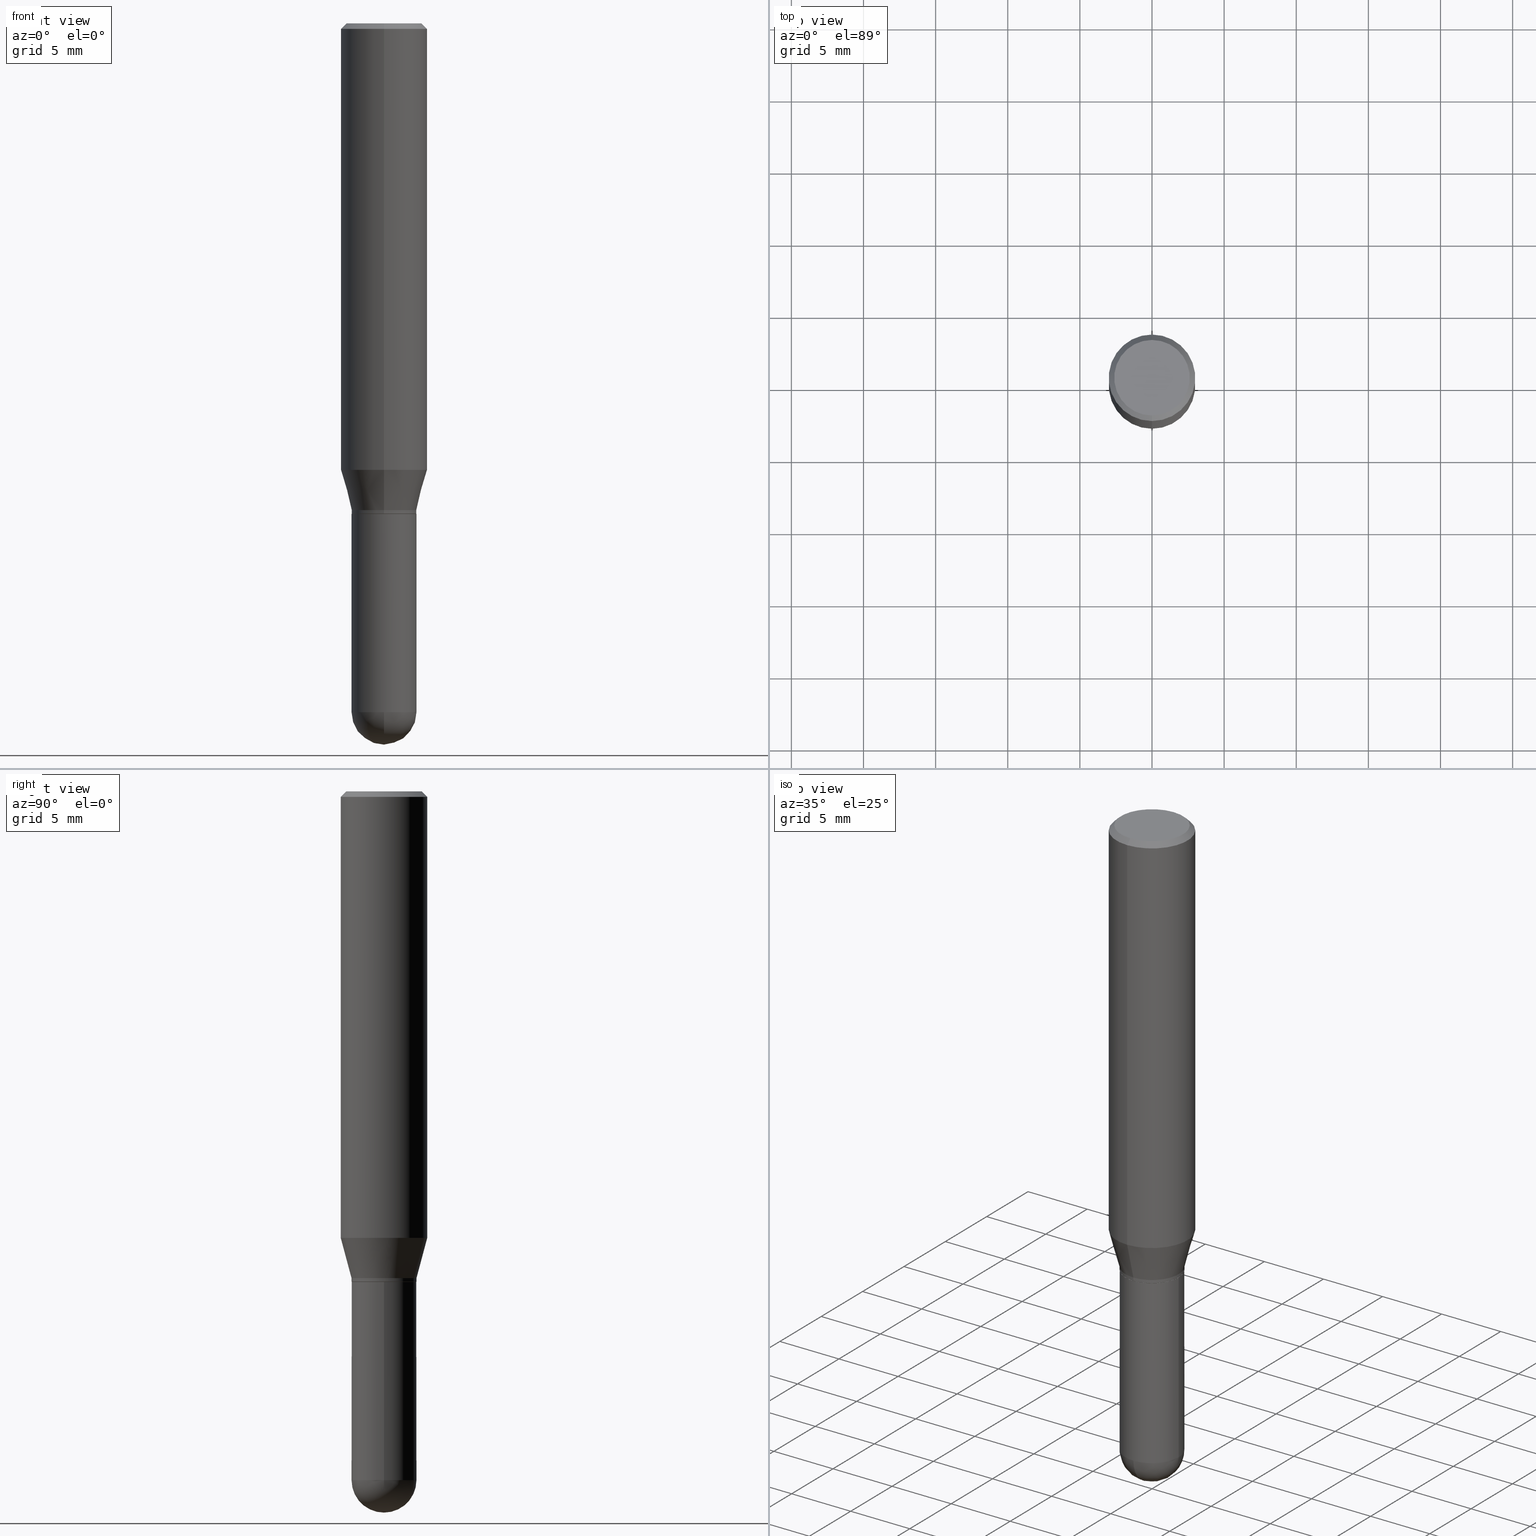
[diagram: canonical four-view strip — front | top / right | iso, engineering-drawing reading convention]
A machine part, canonical four-view strip (front | top / right | iso — engineering-drawing reading convention). The complete STEP part file that produces these views, byte-faithful:
ISO-10303-21;
HEADER;
FILE_DESCRIPTION (( 'STEP AP203' ),
    '1' );
FILE_NAME ('40134.STEP',
    '2024-03-08T12:56:34',
    ( '' ),
    ( '' ),
    'SwSTEP 2.0',
    'SolidWorks 2023',
    '' );
FILE_SCHEMA (( 'CONFIG_CONTROL_DESIGN' ));
ENDSEC;

DATA;
#1 = CLOSED_SHELL ( 'NONE', ( #63, #347, #113, #333, #170, #132, #301, #21, #458, #171, #401, #387 ) ) ;
#2 = EDGE_CURVE ( 'NONE', #439, #492, #303, .T. ) ;
#3 = CYLINDRICAL_SURFACE ( 'NONE', #398, 0.1180999999999999966 ) ;
#4 = ORIENTED_EDGE ( 'NONE', *, *, #443, .T. ) ;
#5 = FACE_OUTER_BOUND ( 'NONE', #475, .T. ) ;
#6 = ORIENTED_EDGE ( 'NONE', *, *, #57, .F. ) ;
#7 = EDGE_CURVE ( 'NONE', #330, #364, #332, .T. ) ;
#8 = APPLICATION_PROTOCOL_DEFINITION ( 'international standard', 'config_control_design', 1994, #345 ) ;
#9 = CARTESIAN_POINT ( 'NONE',  ( 0.000000000000000000, 0.000000000000000000, 0.000000000000000000 ) ) ;
#10 = VECTOR ( 'NONE', #491, 39.37007874015748854 ) ;
#11 = AXIS2_PLACEMENT_3D ( 'NONE', #471, #323, #241 ) ;
#12 = DIRECTION ( 'NONE',  ( 2.438088387897960049E-29, -3.491481338843145188E-15, -1.000000000000000000 ) ) ;
#13 = CARTESIAN_POINT ( 'NONE',  ( 8.391509709326781971E-16, 0.1180999999999999966, -4.123265039032293037E-16 ) ) ;
#14 = MANIFOLD_SOLID_BREP ( 'Body-Move/Copy2[2]', #1 ) ;
#15 = FACE_OUTER_BOUND ( 'NONE', #53, .T. ) ;
#16 = ORIENTED_EDGE ( 'NONE', *, *, #2, .T. ) ;
#17 = CARTESIAN_POINT ( 'NONE',  ( 8.391509709327078780E-16, 0.1180999999999957362, -1.218504501176719046 ) ) ;
#18 = VERTEX_POINT ( 'NONE', #259 ) ;
#19 = PRODUCT ( '40134', '40134', '', ( #425 ) ) ;
#20 = ORGANIZATION ( 'UNSPECIFIED', 'UNSPECIFIED', '' ) ;
#21 = ADVANCED_FACE ( 'NONE', ( #413 ), #256, .T. ) ;
#22 = DIRECTION ( 'NONE',  ( -2.445571937709606698E-29, 3.491333648630222721E-15, 1.000000000000000000 ) ) ;
#23 = DESIGN_CONTEXT ( 'detailed design', #269, 'design' ) ;
#24 = DIRECTION ( 'NONE',  ( -2.445468806185136597E-29, 3.491481338843145583E-15, 1.000000000000000000 ) ) ;
#25 = PERSON_AND_ORGANIZATION_ROLE ( 'creator' ) ;
#26 = DIRECTION ( 'NONE',  ( -6.982962677686265922E-15, -1.000000000000000000, 3.491333648630222721E-15 ) ) ;
#27 = EDGE_CURVE ( 'NONE', #434, #492, #298, .T. ) ;
#28 = PERSON_AND_ORGANIZATION ( #211, #20 ) ;
#29 = EDGE_CURVE ( 'NONE', #330, #218, #318, .T. ) ;
#30 = CIRCLE ( 'NONE', #427, 0.08809999999999999776 ) ;
#31 = FACE_OUTER_BOUND ( 'NONE', #470, .T. ) ;
#32 = LOCAL_TIME ( 7, 56, 34.00000000000000000, #65 ) ;
#33 = CARTESIAN_POINT ( 'NONE',  ( 3.249186876440983461E-29, -4.638585885570114762E-15, -1.328600000000000225 ) ) ;
#34 = CALENDAR_DATE ( 2024, 8, 3 ) ;
#35 = DIRECTION ( 'NONE',  ( -2.445571937709606698E-29, 3.491333648630222721E-15, 1.000000000000000000 ) ) ;
#36 = CARTESIAN_POINT ( 'NONE',  ( -8.246878922347182859E-16, -0.1181000000000042710, -1.218504501176718158 ) ) ;
#37 = CIRCLE ( 'NONE', #407, 0.08859999999999998432 ) ;
#38 = AXIS2_PLACEMENT_3D ( 'NONE', #116, #359, #122 ) ;
#39 = CARTESIAN_POINT ( 'NONE',  ( 3.273504543959423913E-29, -4.673696920175434737E-15, -1.338600000000000012 ) ) ;
#40 = ORIENTED_EDGE ( 'NONE', *, *, #94, .F. ) ;
#41 = CARTESIAN_POINT ( 'NONE',  ( 3.273642595818079531E-29, -4.673499222056415285E-15, -1.338600000000000012 ) ) ;
#42 = ORIENTED_EDGE ( 'NONE', *, *, #231, .T. ) ;
#43 = DIRECTION ( 'NONE',  ( -2.445571937709606698E-29, 3.491333648630222721E-15, 1.000000000000000000 ) ) ;
#44 = CC_DESIGN_DATE_AND_TIME_ASSIGNMENT ( #299, #422, ( #340 ) ) ;
#45 = ORIENTED_EDGE ( 'NONE', *, *, #346, .F. ) ;
#46 = CIRCLE ( 'NONE', #464, 0.1180999999999999966 ) ;
#47 = CC_DESIGN_APPROVAL ( #138, ( #386 ) ) ;
#48 = LINE ( 'NONE', #315, #457 ) ;
#49 = EDGE_LOOP ( 'NONE', ( #184, #142, #252, #251 ) ) ;
#50 = PLANE ( 'NONE',  #371 ) ;
#51 = VERTEX_POINT ( 'NONE', #215 ) ;
#52 = CARTESIAN_POINT ( 'NONE',  ( 6.186904932430358878E-16, 0.08859999999999532139, -1.338600000000000234 ) ) ;
#53 = EDGE_LOOP ( 'NONE', ( #482, #83, #93, #507, #317 ) ) ;
#54 = AXIS2_PLACEMENT_3D ( 'NONE', #461, #306, #156 ) ;
#55 = DIRECTION ( 'NONE',  ( -1.000000000000000000, 6.982962677686265922E-15, -4.876176775795935793E-29 ) ) ;
#56 = ORIENTED_EDGE ( 'NONE', *, *, #314, .F. ) ;
#57 = EDGE_CURVE ( 'NONE', #445, #452, #66, .T. ) ;
#58 = CARTESIAN_POINT ( 'NONE',  ( 3.249186876440983461E-29, -4.638585885570114762E-15, -1.328600000000000225 ) ) ;
#59 = EDGE_LOOP ( 'NONE', ( #16, #242, #135, #277 ) ) ;
#60 = DIRECTION ( 'NONE',  ( 2.445571937709606137E-29, -3.491333648630222721E-15, -1.000000000000000000 ) ) ;
#61 = ORIENTED_EDGE ( 'NONE', *, *, #94, .T. ) ;
#62 = VECTOR ( 'NONE', #351, 39.37007874015748143 ) ;
#63 = ADVANCED_FACE ( 'NONE', ( #377 ), #367, .T. ) ;
#64 = VECTOR ( 'NONE', #158, 39.37007874015748143 ) ;
#65 = COORDINATED_UNIVERSAL_TIME_OFFSET ( 5, 0, .BEHIND. ) ;
#66 = LINE ( 'NONE', #13, #79 ) ;
#67 = PERSON_AND_ORGANIZATION ( #211, #20 ) ;
#68 = CARTESIAN_POINT ( 'NONE',  ( 4.589660035425309027E-29, -6.574486139531674551E-15, -1.879900000000000126 ) ) ;
#69 = COORDINATED_UNIVERSAL_TIME_OFFSET ( 5, 0, .BEHIND. ) ;
#70 = DIRECTION ( 'NONE',  ( -1.000000000000000000, 6.982962677686265133E-15, -4.883557194083112340E-29 ) ) ;
#71 = APPROVAL_ROLE ( '' ) ;
#72 = CIRCLE ( 'NONE', #355, 0.08859999999999998432 ) ;
#73 = SPHERICAL_SURFACE ( 'NONE', #110, 0.08859999999999998432 ) ;
#74 = CIRCLE ( 'NONE', #216, 0.08859999999999991493 ) ;
#75 = PERSON_AND_ORGANIZATION_ROLE ( 'creator' ) ;
#76 = DIRECTION ( 'NONE',  ( -2.445468806185136597E-29, 3.491481338843145583E-15, 1.000000000000000000 ) ) ;
#77 = CARTESIAN_POINT ( 'NONE',  ( -8.246878922347475723E-16, -0.1181000000000000522, -0.01499999999999965944 ) ) ;
#78 = DIRECTION ( 'NONE',  ( -6.982962677686265922E-15, -1.000000000000000000, 3.469747663417777397E-15 ) ) ;
#79 = VECTOR ( 'NONE', #415, 39.37007874015748143 ) ;
#80 = VERTEX_POINT ( 'NONE', #348 ) ;
#81 = CONICAL_SURFACE ( 'NONE', #145, 0.08809999999999999776, 0.7853981633974653764 ) ;
#82 = CARTESIAN_POINT ( 'NONE',  ( 3.668357906564427545E-31, -5.237000472945358290E-17, -0.01500000000000007057 ) ) ;
#83 = ORIENTED_EDGE ( 'NONE', *, *, #115, .T. ) ;
#84 = DIRECTION ( 'NONE',  ( -2.445571937709606698E-29, 3.491333648630222721E-15, 1.000000000000000000 ) ) ;
#85 = VERTEX_POINT ( 'NONE', #149 ) ;
#86 = CARTESIAN_POINT ( 'NONE',  ( 0.000000000000000000, 0.000000000000000000, 0.000000000000000000 ) ) ;
#87 = EDGE_LOOP ( 'NONE', ( #201, #393, #509, #253 ) ) ;
#88 = PRODUCT_DEFINITION_SHAPE ( 'NONE', 'NONE',  #188 ) ;
#89 = CIRCLE ( 'NONE', #376, 0.08859999999999998432 ) ;
#90 = LOCAL_TIME ( 7, 56, 34.00000000000000000, #69 ) ;
#91 = VERTEX_POINT ( 'NONE', #268 ) ;
#92 = CARTESIAN_POINT ( 'NONE',  ( 0.000000000000000000, 0.000000000000000000, 0.000000000000000000 ) ) ;
#93 = ORIENTED_EDGE ( 'NONE', *, *, #430, .T. ) ;
#94 = EDGE_CURVE ( 'NONE', #294, #85, #295, .T. ) ;
#95 = CYLINDRICAL_SURFACE ( 'NONE', #435, 0.08859999999999998432 ) ;
#96 = CARTESIAN_POINT ( 'NONE',  ( 3.272419809849225596E-29, -4.671753555232101403E-15, -1.338100000000000067 ) ) ;
#97 = DIRECTION ( 'NONE',  ( -6.982962677686264344E-15, -1.000000000000000000, 3.083349879982241481E-15 ) ) ;
#98 = ORIENTED_EDGE ( 'NONE', *, *, #150, .T. ) ;
#99 = ORIENTED_EDGE ( 'NONE', *, *, #153, .F. ) ;
#100 = PERSON_AND_ORGANIZATION_ROLE ( 'design_owner' ) ;
#101 = ORIENTED_EDGE ( 'NONE', *, *, #236, .F. ) ;
#102 =( GEOMETRIC_REPRESENTATION_CONTEXT ( 3 ) GLOBAL_UNCERTAINTY_ASSIGNED_CONTEXT ( ( #416 ) ) GLOBAL_UNIT_ASSIGNED_CONTEXT ( ( #450, #221, #370 ) ) REPRESENTATION_CONTEXT ( 'NONE', 'WORKASPACE' ) );
#103 = APPROVAL_DATE_TIME ( #309, #462 ) ;
#104 = CARTESIAN_POINT ( 'NONE',  ( 4.589660035425309027E-29, -6.574486139531674551E-15, -1.879900000000000126 ) ) ;
#105 = CC_DESIGN_PERSON_AND_ORGANIZATION_ASSIGNMENT ( #352, #496, ( #340 ) ) ;
#106 = APPROVAL_ROLE ( '' ) ;
#107 = DIRECTION ( 'NONE',  ( -6.982962677686265133E-15, -1.000000000000000000, 3.100849027995758518E-15 ) ) ;
#108 = PERSON_AND_ORGANIZATION ( #211, #20 ) ;
#109 = FACE_OUTER_BOUND ( 'NONE', #49, .T. ) ;
#110 = AXIS2_PLACEMENT_3D ( 'NONE', #104, #70, #273 ) ;
#111 = CARTESIAN_POINT ( 'NONE',  ( 3.273642595818079531E-29, -4.673499222056415285E-15, -1.338600000000000012 ) ) ;
#112 = LOCAL_TIME ( 7, 56, 34.00000000000000000, #305 ) ;
#113 = ADVANCED_FACE ( 'NONE', ( #456 ), #479, .T. ) ;
#114 = DIRECTION ( 'NONE',  ( -2.445468806185136597E-29, 3.491481338843145583E-15, 1.000000000000000000 ) ) ;
#115 = EDGE_CURVE ( 'NONE', #119, #51, #37, .T. ) ;
#116 = CARTESIAN_POINT ( 'NONE',  ( 0.000000000000000000, 0.000000000000000000, 0.000000000000000000 ) ) ;
#117 = VERTEX_POINT ( 'NONE', #195 ) ;
#118 = DIRECTION ( 'NONE',  ( -2.445571937709606698E-29, 3.491333648630222721E-15, 1.000000000000000000 ) ) ;
#119 = VERTEX_POINT ( 'NONE', #197 ) ;
#120 = VECTOR ( 'NONE', #433, 39.37007874015748143 ) ;
#121 = ADVANCED_FACE ( 'NONE', ( #31 ), #389, .T. ) ;
#122 = DIRECTION ( 'NONE',  ( -6.982962677686265922E-15, -1.000000000000000000, 3.491333648630222721E-15 ) ) ;
#123 = EDGE_LOOP ( 'NONE', ( #448, #61 ) ) ;
#124 = DIRECTION ( 'NONE',  ( -2.445468806185136597E-29, 3.491481338843145583E-15, 1.000000000000000000 ) ) ;
#125 = VERTEX_POINT ( 'NONE', #143 ) ;
#126 = ADVANCED_FACE ( 'NONE', ( #308 ), #73, .T. ) ;
#127 = CARTESIAN_POINT ( 'NONE',  ( 6.295408638834479630E-16, 0.08859999999999991493, -3.093321612686374254E-16 ) ) ;
#128 = ORIENTED_EDGE ( 'NONE', *, *, #144, .F. ) ;
#129 = AXIS2_PLACEMENT_3D ( 'NONE', #382, #76, #267 ) ;
#130 = AXIS2_PLACEMENT_3D ( 'NONE', #488, #483, #328 ) ;
#131 = DIRECTION ( 'NONE',  ( -2.445571937709606698E-29, 3.491333648630222721E-15, 1.000000000000000000 ) ) ;
#132 = ADVANCED_FACE ( 'NONE', ( #495 ), #378, .T. ) ;
#133 = ORIENTED_EDGE ( 'NONE', *, *, #286, .T. ) ;
#134 = CARTESIAN_POINT ( 'NONE',  ( 4.589660035425309027E-29, -6.574486139531674551E-15, -1.879900000000000126 ) ) ;
#135 = ORIENTED_EDGE ( 'NONE', *, *, #29, .F. ) ;
#136 = DIRECTION ( 'NONE',  ( -2.445571937709606698E-29, 3.491333648630222721E-15, 1.000000000000000000 ) ) ;
#137 = ORIENTED_EDGE ( 'NONE', *, *, #430, .F. ) ;
#138 = APPROVAL ( #272, 'UNSPECIFIED' ) ;
#139 = CC_DESIGN_APPROVAL ( #322, ( #188 ) ) ;
#140 = DIRECTION ( 'NONE',  ( -2.445468806185136877E-29, 3.491481338843145188E-15, 1.000000000000000000 ) ) ;
#141 = EDGE_LOOP ( 'NONE', ( #6, #285, #248, #99 ) ) ;
#142 = ORIENTED_EDGE ( 'NONE', *, *, #411, .T. ) ;
#143 = CARTESIAN_POINT ( 'NONE',  ( -0.08859999999999999820, -4.989125480649882450E-15, -1.338600000000000012 ) ) ;
#144 = EDGE_CURVE ( 'NONE', #18, #439, #504, .T. ) ;
#145 = AXIS2_PLACEMENT_3D ( 'NONE', #41, #394, #203 ) ;
#146 = COORDINATED_UNIVERSAL_TIME_OFFSET ( 5, 0, .BEHIND. ) ;
#147 = DIRECTION ( 'NONE',  ( 1.000000000000000000, -6.982962677686270655E-15, 0.000000000000000000 ) ) ;
#148 = APPROVAL_DATE_TIME ( #349, #138 ) ;
#149 = CARTESIAN_POINT ( 'NONE',  ( 7.723156721521010848E-16, 0.1030999999999999833, -4.311523783000284449E-16 ) ) ;
#150 = EDGE_CURVE ( 'NONE', #117, #91, #72, .T. ) ;
#151 = DIRECTION ( 'NONE',  ( 0.000000000000000000, 0.000000000000000000, 1.000000000000000000 ) ) ;
#152 = DIRECTION ( 'NONE',  ( 1.000000000000000000, -6.982962677686265922E-15, 4.883557194083112340E-29 ) ) ;
#153 = EDGE_CURVE ( 'NONE', #452, #292, #193, .T. ) ;
#154 = AXIS2_PLACEMENT_3D ( 'NONE', #220, #375, #410 ) ;
#155 = AXIS2_PLACEMENT_3D ( 'NONE', #421, #35, #310 ) ;
#156 = DIRECTION ( 'NONE',  ( -6.982962677686264344E-15, -1.000000000000000000, 3.083349879982241481E-15 ) ) ;
#157 = CC_DESIGN_SECURITY_CLASSIFICATION ( #340, ( #386 ) ) ;
#158 = DIRECTION ( 'NONE',  ( 4.937700262164548831E-15, 0.7071067811865452413, -0.7071067811865497932 ) ) ;
#159 = ORIENTED_EDGE ( 'NONE', *, *, #27, .T. ) ;
#160 = LINE ( 'NONE', #510, #120 ) ;
#161 = ORIENTED_EDGE ( 'NONE', *, *, #178, .T. ) ;
#162 = CARTESIAN_POINT ( 'NONE',  ( 2.979940414050625783E-29, -4.254205765965662908E-15, -1.218504501176718602 ) ) ;
#163 = AXIS2_PLACEMENT_3D ( 'NONE', #350, #463, #497 ) ;
#164 = ORIENTED_EDGE ( 'NONE', *, *, #335, .F. ) ;
#165 = AXIS2_PLACEMENT_3D ( 'NONE', #86, #118, #280 ) ;
#166 = DIRECTION ( 'NONE',  ( -6.982962677686265922E-15, -1.000000000000000000, 3.491333648630222721E-15 ) ) ;
#167 = ORIENTED_EDGE ( 'NONE', *, *, #493, .F. ) ;
#168 = CARTESIAN_POINT ( 'NONE',  ( -6.186904932429700179E-16, -0.08860000000000455012, -1.328599999999999781 ) ) ;
#169 = ORIENTED_EDGE ( 'NONE', *, *, #485, .T. ) ;
#170 = ADVANCED_FACE ( 'NONE', ( #109 ), #369, .T. ) ;
#171 = ADVANCED_FACE ( 'NONE', ( #228 ), #274, .F. ) ;
#172 = CARTESIAN_POINT ( 'NONE',  ( 6.259881502046808869E-16, 0.08809999999999532094, -1.338600000000000234 ) ) ;
#173 = AXIS2_PLACEMENT_3D ( 'NONE', #9, #22, #484 ) ;
#174 = CIRCLE ( 'NONE', #263, 0.1180999999999999966 ) ;
#175 = DIRECTION ( 'NONE',  ( -7.105427357600999492E-15, -1.000000000000000000, 0.000000000000000000 ) ) ;
#176 = ORIENTED_EDGE ( 'NONE', *, *, #247, .F. ) ;
#177 = CARTESIAN_POINT ( 'NONE',  ( 0.000000000000000000, 0.000000000000000000, 0.000000000000000000 ) ) ;
#178 = EDGE_CURVE ( 'NONE', #18, #434, #30, .T. ) ;
#179 = ORIENTED_EDGE ( 'NONE', *, *, #314, .T. ) ;
#180 = DIRECTION ( 'NONE',  ( 1.839019923739605837E-15, 0.2588190451025257355, 0.9659258262890669799 ) ) ;
#181 = ORIENTED_EDGE ( 'NONE', *, *, #311, .T. ) ;
#182 = AXIS2_PLACEMENT_3D ( 'NONE', #365, #467, #275 ) ;
#183 = APPROVAL_PERSON_ORGANIZATION ( #227, #462, #189 ) ;
#184 = ORIENTED_EDGE ( 'NONE', *, *, #29, .T. ) ;
#185 = ADVANCED_BREP_SHAPE_REPRESENTATION ( '40134', ( #190, #14, #391 ), #102 ) ;
#186 = DATE_AND_TIME ( #388, #257 ) ;
#187 = DIRECTION ( 'NONE',  ( -2.445571937709606698E-29, 3.491333648630222721E-15, 1.000000000000000000 ) ) ;
#188 = PRODUCT_DEFINITION ( 'UNKNOWN', '', #386, #23 ) ;
#189 = APPROVAL_ROLE ( '' ) ;
#190 = MANIFOLD_SOLID_BREP ( 'Body-Move/Copy2[1]', #418 ) ;
#191 = ADVANCED_FACE ( 'NONE', ( #230 ), #381, .T. ) ;
#192 = DIRECTION ( 'NONE',  ( -2.445571937709606698E-29, 3.491333648630222721E-15, 1.000000000000000000 ) ) ;
#193 = CIRCLE ( 'NONE', #155, 0.1180999999999999966 ) ;
#194 = PERSON_AND_ORGANIZATION ( #211, #20 ) ;
#195 = CARTESIAN_POINT ( 'NONE',  ( 4.810116958314376734E-29, -6.878406200832954656E-15, -1.968500000000000139 ) ) ;
#196 = DIRECTION ( 'NONE',  ( -1.000000000000000000, 6.982962677686265133E-15, -4.883557194083112340E-29 ) ) ;
#197 = CARTESIAN_POINT ( 'NONE',  ( -0.08859999999999998432, -4.989125480649882450E-15, -1.879899999999999904 ) ) ;
#198 = AXIS2_PLACEMENT_3D ( 'NONE', #419, #372, #446 ) ;
#199 = DIRECTION ( 'NONE',  ( -2.445571937709606698E-29, 3.491333648630222721E-15, 1.000000000000000000 ) ) ;
#200 = DIRECTION ( 'NONE',  ( 1.000000000000000000, -6.982962677686269077E-15, 0.000000000000000000 ) ) ;
#201 = ORIENTED_EDGE ( 'NONE', *, *, #411, .F. ) ;
#202 = EDGE_CURVE ( 'NONE', #439, #330, #423, .T. ) ;
#203 = DIRECTION ( 'NONE',  ( -6.982962677686265133E-15, -1.000000000000000000, 3.100849027995758518E-15 ) ) ;
#204 = ORIENTED_EDGE ( 'NONE', *, *, #354, .F. ) ;
#205 = DIRECTION ( 'NONE',  ( -6.982962677686265922E-15, -1.000000000000000000, 3.469747663417777397E-15 ) ) ;
#206 = CIRCLE ( 'NONE', #182, 0.08809999999999999776 ) ;
#207 = ORIENTED_EDGE ( 'NONE', *, *, #440, .T. ) ;
#208 = AXIS2_PLACEMENT_3D ( 'NONE', #447, #60, #254 ) ;
#209 = CARTESIAN_POINT ( 'NONE',  ( 2.979940414050625783E-29, -4.254205765965662908E-15, -1.218504501176718602 ) ) ;
#210 = ORIENTED_EDGE ( 'NONE', *, *, #501, .F. ) ;
#211 = PERSON ( 'UNSPECIFIED', 'UNSPECIFIED', 'UNSPECIFIED', ('UNSPECIFIED'), ('UNSPECIFIED'), ('UNSPECIFIED') ) ;
#212 = DIRECTION ( 'NONE',  ( -2.445468806185136877E-29, 3.491481338843145188E-15, 1.000000000000000000 ) ) ;
#213 = ORIENTED_EDGE ( 'NONE', *, *, #150, .F. ) ;
#214 = CARTESIAN_POINT ( 'NONE',  ( -0.08859999999999998432, 6.295408638834486533E-16, -4.358176489965845566E-30 ) ) ;
#215 = CARTESIAN_POINT ( 'NONE',  ( -6.295408638834025049E-16, -0.08860000000000653464, -1.879899999999999460 ) ) ;
#216 = AXIS2_PLACEMENT_3D ( 'NONE', #58, #131, #97 ) ;
#217 = CARTESIAN_POINT ( 'NONE',  ( 4.597236808747438107E-29, -6.563635768891228653E-15, -1.879899999999999904 ) ) ;
#218 = VERTEX_POINT ( 'NONE', #384 ) ;
#219 = CARTESIAN_POINT ( 'NONE',  ( 1.741146440717284122E-45, -2.485685684372956849E-31, -7.119587912625256389E-17 ) ) ;
#220 = CARTESIAN_POINT ( 'NONE',  ( 3.668357906564427545E-31, -5.237000472945358290E-17, -0.01500000000000007057 ) ) ;
#221 =( NAMED_UNIT ( * ) PLANE_ANGLE_UNIT ( ) SI_UNIT ( $, .RADIAN. ) );
#222 = EDGE_CURVE ( 'NONE', #91, #119, #270, .T. ) ;
#223 = ORIENTED_EDGE ( 'NONE', *, *, #222, .F. ) ;
#224 = CIRCLE ( 'NONE', #356, 0.08859999999999999820 ) ;
#225 = COORDINATED_UNIVERSAL_TIME_OFFSET ( 5, 0, .BEHIND. ) ;
#226 = CARTESIAN_POINT ( 'NONE',  ( -6.151990119041272080E-16, -0.08810000000000467457, -1.338599999999999790 ) ) ;
#227 = PERSON_AND_ORGANIZATION ( #211, #20 ) ;
#228 = FACE_OUTER_BOUND ( 'NONE', #283, .T. ) ;
#229 = PERSON_AND_ORGANIZATION_ROLE ( 'design_supplier' ) ;
#230 = FACE_OUTER_BOUND ( 'NONE', #406, .T. ) ;
#231 = EDGE_CURVE ( 'NONE', #434, #18, #206, .T. ) ;
#232 = CIRCLE ( 'NONE', #319, 0.1030999999999999833 ) ;
#233 = CARTESIAN_POINT ( 'NONE',  ( 4.597236808747438107E-29, -6.563635768891228653E-15, -1.879899999999999904 ) ) ;
#234 = EDGE_CURVE ( 'NONE', #445, #364, #46, .T. ) ;
#235 = SECURITY_CLASSIFICATION_LEVEL ( 'unclassified' ) ;
#236 = EDGE_CURVE ( 'NONE', #492, #218, #363, .T. ) ;
#237 = CARTESIAN_POINT ( 'NONE',  ( -6.186904932430024598E-16, -0.08859999999999991493, 3.093321612686374254E-16 ) ) ;
#238 = CARTESIAN_POINT ( 'NONE',  ( 3.273642595818079531E-29, -4.673499222056415285E-15, -1.338600000000000012 ) ) ;
#239 = VECTOR ( 'NONE', #261, 39.37007874015748143 ) ;
#240 = VECTOR ( 'NONE', #325, 39.37007874015748143 ) ;
#241 = DIRECTION ( 'NONE',  ( -6.982962677686264344E-15, -1.000000000000000000, 3.083349879982241481E-15 ) ) ;
#242 = ORIENTED_EDGE ( 'NONE', *, *, #236, .T. ) ;
#243 = CC_DESIGN_DATE_AND_TIME_ASSIGNMENT ( #186, #383, ( #188 ) ) ;
#244 = FACE_OUTER_BOUND ( 'NONE', #324, .T. ) ;
#245 = ORIENTED_EDGE ( 'NONE', *, *, #27, .F. ) ;
#246 = DIRECTION ( 'NONE',  ( -2.445468806185136597E-29, 3.491481338843145583E-15, 1.000000000000000000 ) ) ;
#247 = EDGE_CURVE ( 'NONE', #80, #91, #89, .T. ) ;
#248 = ORIENTED_EDGE ( 'NONE', *, *, #335, .T. ) ;
#249 = DIRECTION ( 'NONE',  ( -6.982962677686265133E-15, -1.000000000000000000, 3.100849027995758518E-15 ) ) ;
#250 = VECTOR ( 'NONE', #282, 39.37007874015748143 ) ;
#251 = ORIENTED_EDGE ( 'NONE', *, *, #7, .F. ) ;
#252 = ORIENTED_EDGE ( 'NONE', *, *, #286, .F. ) ;
#253 = ORIENTED_EDGE ( 'NONE', *, *, #234, .F. ) ;
#254 = DIRECTION ( 'NONE',  ( 6.982962677686265922E-15, 1.000000000000000000, -3.491333648630222721E-15 ) ) ;
#255 = VERTEX_POINT ( 'NONE', #438 ) ;
#256 = CONICAL_SURFACE ( 'NONE', #154, 0.1180999999999999966, 0.7853981633974485010 ) ;
#257 = LOCAL_TIME ( 7, 56, 34.00000000000000000, #146 ) ;
#258 = CARTESIAN_POINT ( 'NONE',  ( 6.295408638834805036E-16, 0.08859999999999519649, -1.338100000000000511 ) ) ;
#259 = CARTESIAN_POINT ( 'NONE',  ( -6.151990119041272080E-16, -0.08810000000000467457, -1.338599999999999790 ) ) ;
#260 = PLANE ( 'NONE',  #208 ) ;
#261 = DIRECTION ( 'NONE',  ( 5.024295867788147587E-15, 0.7071067811865620056, 0.7071067811865330288 ) ) ;
#262 = DIRECTION ( 'NONE',  ( -6.982962677686264344E-15, -1.000000000000000000, 3.083349879982241481E-15 ) ) ;
#263 = AXIS2_PLACEMENT_3D ( 'NONE', #82, #474, #287 ) ;
#264 = DIRECTION ( 'NONE',  ( 1.000000000000000000, 0.000000000000000000, 0.000000000000000000 ) ) ;
#265 = CARTESIAN_POINT ( 'NONE',  ( 4.589660035425309027E-29, -6.574486139531674551E-15, -1.879900000000000126 ) ) ;
#266 = PERSON_AND_ORGANIZATION ( #211, #20 ) ;
#267 = DIRECTION ( 'NONE',  ( 1.000000000000000000, -6.982962677686265922E-15, 4.876176775795935232E-29 ) ) ;
#268 = CARTESIAN_POINT ( 'NONE',  ( 6.186904932430488054E-16, 0.08859999999999342013, -1.879900000000000126 ) ) ;
#269 = APPLICATION_CONTEXT ( 'configuration controlled 3d designs of mechanical parts and assemblies' ) ;
#270 = CIRCLE ( 'NONE', #361, 0.08859999999999998432 ) ;
#271 = LOCAL_TIME ( 7, 56, 34.00000000000000000, #225 ) ;
#272 = APPROVAL_STATUS ( 'not_yet_approved' ) ;
#273 = DIRECTION ( 'NONE',  ( 6.982962677686265133E-15, 1.000000000000000000, -3.083349879982239114E-15 ) ) ;
#274 = PLANE ( 'NONE',  #449 ) ;
#275 = DIRECTION ( 'NONE',  ( -6.982962677686265133E-15, -1.000000000000000000, 3.100849027995758518E-15 ) ) ;
#276 = CC_DESIGN_PERSON_AND_ORGANIZATION_ASSIGNMENT ( #28, #100, ( #19 ) ) ;
#277 = ORIENTED_EDGE ( 'NONE', *, *, #202, .F. ) ;
#278 = AXIS2_PLACEMENT_3D ( 'NONE', #68, #196, #426 ) ;
#279 = VECTOR ( 'NONE', #212, 39.37007874015748143 ) ;
#280 = DIRECTION ( 'NONE',  ( -6.982962677686264344E-15, -1.000000000000000000, 3.491333648630222721E-15 ) ) ;
#281 = EDGE_LOOP ( 'NONE', ( #40, #289, #179, #397 ) ) ;
#282 = DIRECTION ( 'NONE',  ( -2.445571937709606698E-29, 3.491333648630222721E-15, 1.000000000000000000 ) ) ;
#283 = EDGE_LOOP ( 'NONE', ( #403, #360 ) ) ;
#284 = CARTESIAN_POINT ( 'NONE',  ( -7.587710785535310407E-16, -0.1030999999999999833, 2.887606200475233665E-16 ) ) ;
#285 = ORIENTED_EDGE ( 'NONE', *, *, #234, .T. ) ;
#286 = EDGE_CURVE ( 'NONE', #364, #445, #428, .T. ) ;
#287 = DIRECTION ( 'NONE',  ( -6.982962677686265922E-15, -1.000000000000000000, 3.487819265831411744E-15 ) ) ;
#288 = CIRCLE ( 'NONE', #409, 0.08859999999999998432 ) ;
#289 = ORIENTED_EDGE ( 'NONE', *, *, #346, .T. ) ;
#290 = CARTESIAN_POINT ( 'NONE',  ( -6.186904932429700179E-16, -0.08860000000000455012, -1.328599999999999781 ) ) ;
#291 = CARTESIAN_POINT ( 'NONE',  ( 6.277645070440807445E-16, 0.08809999999999532094, -1.338600000000000234 ) ) ;
#292 = VERTEX_POINT ( 'NONE', #77 ) ;
#293 = LENGTH_MEASURE_WITH_UNIT ( LENGTH_MEASURE( 0.02539999999999999897 ), #341 );
#294 = VERTEX_POINT ( 'NONE', #284 ) ;
#295 = CIRCLE ( 'NONE', #505, 0.1030999999999999833 ) ;
#296 = AXIS2_PLACEMENT_3D ( 'NONE', #134, #444, #175 ) ;
#297 = DIRECTION ( 'NONE',  ( -6.982962677686265922E-15, -1.000000000000000000, 3.491333648630222721E-15 ) ) ;
#298 = LINE ( 'NONE', #172, #239 ) ;
#299 = DATE_AND_TIME ( #34, #112 ) ;
#300 = DIRECTION ( 'NONE',  ( -2.445571937709606698E-29, 3.491333648630222721E-15, 1.000000000000000000 ) ) ;
#301 = ADVANCED_FACE ( 'NONE', ( #469 ), #3, .T. ) ;
#302 = DIRECTION ( 'NONE',  ( 6.982962677686265133E-15, 1.000000000000000000, 0.000000000000000000 ) ) ;
#303 = CIRCLE ( 'NONE', #339, 0.08859999999999991493 ) ;
#304 = CIRCLE ( 'NONE', #296, 0.08859999999999998432 ) ;
#305 = COORDINATED_UNIVERSAL_TIME_OFFSET ( 5, 0, .BEHIND. ) ;
#306 = DIRECTION ( 'NONE',  ( -2.445571937709606698E-29, 3.491333648630222721E-15, 1.000000000000000000 ) ) ;
#307 = CALENDAR_DATE ( 2024, 8, 3 ) ;
#308 = FACE_OUTER_BOUND ( 'NONE', #336, .T. ) ;
#309 = DATE_AND_TIME ( #307, #90 ) ;
#310 = DIRECTION ( 'NONE',  ( -6.982962677686265922E-15, -1.000000000000000000, 3.487819265831411744E-15 ) ) ;
#311 = EDGE_CURVE ( 'NONE', #492, #439, #312, .T. ) ;
#312 = CIRCLE ( 'NONE', #11, 0.08859999999999991493 ) ;
#313 = DIRECTION ( 'NONE',  ( -2.445571937709606137E-29, 3.491333648630222721E-15, 1.000000000000000000 ) ) ;
#314 = EDGE_CURVE ( 'NONE', #292, #452, #174, .T. ) ;
#315 = CARTESIAN_POINT ( 'NONE',  ( 6.295408638834805036E-16, 0.08859999999999526588, -1.328600000000000447 ) ) ;
#316 = DIRECTION ( 'NONE',  ( 1.000000000000000000, -6.982962677686270655E-15, 0.000000000000000000 ) ) ;
#317 = ORIENTED_EDGE ( 'NONE', *, *, #443, .F. ) ;
#318 = CIRCLE ( 'NONE', #198, 0.08859999999999991493 ) ;
#319 = AXIS2_PLACEMENT_3D ( 'NONE', #219, #136, #297 ) ;
#320 = FACE_OUTER_BOUND ( 'NONE', #366, .T. ) ;
#321 = ORIENTED_EDGE ( 'NONE', *, *, #222, .T. ) ;
#322 = APPROVAL ( #417, 'UNSPECIFIED' ) ;
#323 = DIRECTION ( 'NONE',  ( -2.445571937709606698E-29, 3.491333648630222721E-15, 1.000000000000000000 ) ) ;
#324 = EDGE_LOOP ( 'NONE', ( #101, #181, #442, #400 ) ) ;
#325 = DIRECTION ( 'NONE',  ( -4.851104656540965064E-15, -0.7071067811865501263, -0.7071067811865449082 ) ) ;
#326 = ORIENTED_EDGE ( 'NONE', *, *, #153, .T. ) ;
#327 = AXIS2_PLACEMENT_3D ( 'NONE', #33, #192, #353 ) ;
#328 = DIRECTION ( 'NONE',  ( 1.000000000000000000, -6.982962677686269077E-15, 0.000000000000000000 ) ) ;
#329 = CONICAL_SURFACE ( 'NONE', #465, 0.08809999999999999776, 0.7853981633974653764 ) ;
#330 = VERTEX_POINT ( 'NONE', #168 ) ;
#331 = CARTESIAN_POINT ( 'NONE',  ( -6.186904932429700179E-16, -0.08860000000000461950, -1.338099999999999845 ) ) ;
#332 = LINE ( 'NONE', #290, #10 ) ;
#333 = ADVANCED_FACE ( 'NONE', ( #320 ), #357, .T. ) ;
#334 = DIRECTION ( 'NONE',  ( 1.000000000000000000, -6.982962677686265922E-15, 4.876176775795935232E-29 ) ) ;
#335 = EDGE_CURVE ( 'NONE', #364, #292, #160, .T. ) ;
#336 = EDGE_LOOP ( 'NONE', ( #468, #98, #176, #137 ) ) ;
#337 = FACE_OUTER_BOUND ( 'NONE', #123, .T. ) ;
#338 = ORIENTED_EDGE ( 'NONE', *, *, #247, .T. ) ;
#339 = AXIS2_PLACEMENT_3D ( 'NONE', #96, #300, #262 ) ;
#340 = SECURITY_CLASSIFICATION ( '', '', #235 ) ;
#341 =( LENGTH_UNIT ( ) NAMED_UNIT ( * ) SI_UNIT ( $, .METRE. ) );
#342 = ORIENTED_EDGE ( 'NONE', *, *, #57, .T. ) ;
#343 = PERSON_AND_ORGANIZATION ( #211, #20 ) ;
#344 = CARTESIAN_POINT ( 'NONE',  ( 3.273642595818079531E-29, -4.673499222056415285E-15, -1.338600000000000012 ) ) ;
#345 = APPLICATION_CONTEXT ( 'configuration controlled 3d designs of mechanical parts and assemblies' ) ;
#346 = EDGE_CURVE ( 'NONE', #294, #292, #477, .T. ) ;
#347 = ADVANCED_FACE ( 'NONE', ( #5 ), #329, .T. ) ;
#348 = CARTESIAN_POINT ( 'NONE',  ( 0.08859999999999998432, -6.237356837776335042E-15, -1.879899999999999904 ) ) ;
#349 = DATE_AND_TIME ( #429, #271 ) ;
#350 = CARTESIAN_POINT ( 'NONE',  ( 3.668357906564427545E-31, -5.237000472945358290E-17, -0.01500000000000007057 ) ) ;
#351 = DIRECTION ( 'NONE',  ( -4.937700262164631661E-15, -0.7071067811865571207, 0.7071067811865379138 ) ) ;
#352 = PERSON_AND_ORGANIZATION ( #211, #20 ) ;
#353 = DIRECTION ( 'NONE',  ( -6.982962677686264344E-15, -1.000000000000000000, 3.083349879982241481E-15 ) ) ;
#354 = EDGE_CURVE ( 'NONE', #255, #125, #224, .T. ) ;
#355 = AXIS2_PLACEMENT_3D ( 'NONE', #265, #152, #302 ) ;
#356 = AXIS2_PLACEMENT_3D ( 'NONE', #39, #246, #200 ) ;
#357 = CYLINDRICAL_SURFACE ( 'NONE', #38, 0.1180999999999999966 ) ;
#358 = DIRECTION ( 'NONE',  ( -2.445571937709606698E-29, 3.491333648630222721E-15, 1.000000000000000000 ) ) ;
#359 = DIRECTION ( 'NONE',  ( -2.445571937709606698E-29, 3.491333648630222721E-15, 1.000000000000000000 ) ) ;
#360 = ORIENTED_EDGE ( 'NONE', *, *, #231, .F. ) ;
#361 = AXIS2_PLACEMENT_3D ( 'NONE', #466, #114, #390 ) ;
#362 = APPROVAL_PERSON_ORGANIZATION ( #67, #322, #71 ) ;
#363 = LINE ( 'NONE', #127, #250 ) ;
#364 = VERTEX_POINT ( 'NONE', #36 ) ;
#365 = CARTESIAN_POINT ( 'NONE',  ( 3.273642595818079531E-29, -4.673499222056415285E-15, -1.338600000000000012 ) ) ;
#366 = EDGE_LOOP ( 'NONE', ( #133, #342, #56, #164 ) ) ;
#367 = CYLINDRICAL_SURFACE ( 'NONE', #173, 0.08859999999999991493 ) ;
#368 = EDGE_CURVE ( 'NONE', #85, #452, #508, .T. ) ;
#369 = CONICAL_SURFACE ( 'NONE', #54, 0.08859999999999991493, 0.2617993877991510732 ) ;
#370 =( NAMED_UNIT ( * ) SI_UNIT ( $, .STERADIAN. ) SOLID_ANGLE_UNIT ( ) );
#371 = AXIS2_PLACEMENT_3D ( 'NONE', #52, #12, #55 ) ;
#372 = DIRECTION ( 'NONE',  ( -2.445571937709606698E-29, 3.491333648630222721E-15, 1.000000000000000000 ) ) ;
#373 = DIRECTION ( 'NONE',  ( 1.000000000000000000, -6.982962677686270655E-15, 0.000000000000000000 ) ) ;
#374 = EDGE_LOOP ( 'NONE', ( #45, #210, #453, #326 ) ) ;
#375 = DIRECTION ( 'NONE',  ( 2.445571937709606698E-29, -3.491333648630222721E-15, -1.000000000000000000 ) ) ;
#376 = AXIS2_PLACEMENT_3D ( 'NONE', #436, #124, #316 ) ;
#377 = FACE_OUTER_BOUND ( 'NONE', #59, .T. ) ;
#378 = CONICAL_SURFACE ( 'NONE', #327, 0.08859999999999991493, 0.2617993877991510732 ) ;
#379 = CC_DESIGN_APPROVAL ( #462, ( #340 ) ) ;
#380 = SHAPE_DEFINITION_REPRESENTATION ( #88, #185 ) ;
#381 = CYLINDRICAL_SURFACE ( 'NONE', #129, 0.08859999999999998432 ) ;
#382 = CARTESIAN_POINT ( 'NONE',  ( 0.000000000000000000, 0.000000000000000000, 0.000000000000000000 ) ) ;
#383 = DATE_TIME_ROLE ( 'creation_date' ) ;
#384 = CARTESIAN_POINT ( 'NONE',  ( 7.343459174080941908E-16, 0.08859999999999526588, -1.328600000000000447 ) ) ;
#385 = VECTOR ( 'NONE', #187, 39.37007874015748143 ) ;
#386 = PRODUCT_DEFINITION_FORMATION_WITH_SPECIFIED_SOURCE ( 'ANY', '', #19, .NOT_KNOWN. ) ;
#387 = ADVANCED_FACE ( 'NONE', ( #244 ), #396, .T. ) ;
#388 = CALENDAR_DATE ( 2024, 8, 3 ) ;
#389 = SPHERICAL_SURFACE ( 'NONE', #278, 0.08859999999999998432 ) ;
#390 = DIRECTION ( 'NONE',  ( 1.000000000000000000, -6.982962677686270655E-15, 0.000000000000000000 ) ) ;
#391 = AXIS2_PLACEMENT_3D ( 'NONE', #92, #151, #264 ) ;
#392 = CARTESIAN_POINT ( 'NONE',  ( 0.000000000000000000, 0.000000000000000000, 0.000000000000000000 ) ) ;
#393 = ORIENTED_EDGE ( 'NONE', *, *, #472, .T. ) ;
#394 = DIRECTION ( 'NONE',  ( -2.445571937709606698E-29, 3.491333648630222721E-15, 1.000000000000000000 ) ) ;
#395 = ORIENTED_EDGE ( 'NONE', *, *, #115, .F. ) ;
#396 = CYLINDRICAL_SURFACE ( 'NONE', #165, 0.08859999999999991493 ) ;
#397 = ORIENTED_EDGE ( 'NONE', *, *, #368, .F. ) ;
#398 = AXIS2_PLACEMENT_3D ( 'NONE', #392, #43, #166 ) ;
#399 = FACE_OUTER_BOUND ( 'NONE', #478, .T. ) ;
#400 = ORIENTED_EDGE ( 'NONE', *, *, #472, .F. ) ;
#401 = ADVANCED_FACE ( 'NONE', ( #399 ), #81, .T. ) ;
#402 = CARTESIAN_POINT ( 'NONE',  ( 0.08859999999999998432, -6.186904932430030515E-16, 4.320292623355198064E-30 ) ) ;
#403 = ORIENTED_EDGE ( 'NONE', *, *, #178, .F. ) ;
#404 = CC_DESIGN_PERSON_AND_ORGANIZATION_ASSIGNMENT ( #266, #229, ( #386 ) ) ;
#405 = LINE ( 'NONE', #402, #279 ) ;
#406 = EDGE_LOOP ( 'NONE', ( #321, #169, #204, #167, #338 ) ) ;
#407 = AXIS2_PLACEMENT_3D ( 'NONE', #233, #24, #147 ) ;
#408 = FACE_OUTER_BOUND ( 'NONE', #487, .T. ) ;
#409 = AXIS2_PLACEMENT_3D ( 'NONE', #217, #412, #373 ) ;
#410 = DIRECTION ( 'NONE',  ( 6.982962677686265922E-15, 1.000000000000000000, -3.487819265831411744E-15 ) ) ;
#411 = EDGE_CURVE ( 'NONE', #218, #445, #48, .T. ) ;
#412 = DIRECTION ( 'NONE',  ( -2.445468806185136597E-29, 3.491481338843145583E-15, 1.000000000000000000 ) ) ;
#413 = FACE_OUTER_BOUND ( 'NONE', #374, .T. ) ;
#414 = CARTESIAN_POINT ( 'NONE',  ( 8.391509709327082724E-16, 0.1180999999999999411, -0.01500000000000048170 ) ) ;
#415 = DIRECTION ( 'NONE',  ( -2.445571937709606698E-29, 3.491333648630222721E-15, 1.000000000000000000 ) ) ;
#416 = UNCERTAINTY_MEASURE_WITH_UNIT (LENGTH_MEASURE( 1.000000000000000082E-05 ), #450, 'distance_accuracy_value', 'NONE');
#417 = APPROVAL_STATUS ( 'not_yet_approved' ) ;
#418 = CLOSED_SHELL ( 'NONE', ( #191, #121, #424, #126, #460 ) ) ;
#419 = CARTESIAN_POINT ( 'NONE',  ( 3.249186876440983461E-29, -4.638585885570114762E-15, -1.328600000000000225 ) ) ;
#420 = APPLICATION_PROTOCOL_DEFINITION ( 'international standard', 'config_control_design', 1994, #269 ) ;
#421 = CARTESIAN_POINT ( 'NONE',  ( 3.668357906564427545E-31, -5.237000472945358290E-17, -0.01500000000000007057 ) ) ;
#422 = DATE_TIME_ROLE ( 'classification_date' ) ;
#423 = LINE ( 'NONE', #237, #385 ) ;
#424 = ADVANCED_FACE ( 'NONE', ( #408 ), #50, .F. ) ;
#425 = MECHANICAL_CONTEXT ( 'NONE', #345, 'mechanical' ) ;
#426 = DIRECTION ( 'NONE',  ( 6.982962677686265133E-15, 1.000000000000000000, -3.083349879982239114E-15 ) ) ;
#427 = AXIS2_PLACEMENT_3D ( 'NONE', #111, #431, #107 ) ;
#428 = CIRCLE ( 'NONE', #480, 0.1180999999999999966 ) ;
#429 = CALENDAR_DATE ( 2024, 8, 3 ) ;
#430 = EDGE_CURVE ( 'NONE', #51, #80, #288, .T. ) ;
#431 = DIRECTION ( 'NONE',  ( -2.445571937709606698E-29, 3.491333648630222721E-15, 1.000000000000000000 ) ) ;
#432 = DIRECTION ( 'NONE',  ( -6.982962677686265922E-15, -1.000000000000000000, 3.491333648630222721E-15 ) ) ;
#433 = DIRECTION ( 'NONE',  ( -2.445571937709606698E-29, 3.491333648630222721E-15, 1.000000000000000000 ) ) ;
#434 = VERTEX_POINT ( 'NONE', #291 ) ;
#435 = AXIS2_PLACEMENT_3D ( 'NONE', #177, #481, #334 ) ;
#436 = CARTESIAN_POINT ( 'NONE',  ( 4.597236808747438107E-29, -6.563635768891228653E-15, -1.879899999999999904 ) ) ;
#437 = ORIENTED_EDGE ( 'NONE', *, *, #144, .T. ) ;
#438 = CARTESIAN_POINT ( 'NONE',  ( 0.08859999999999999820, -5.292387413418437689E-15, -1.338600000000000012 ) ) ;
#439 = VERTEX_POINT ( 'NONE', #331 ) ;
#440 = EDGE_CURVE ( 'NONE', #117, #51, #304, .T. ) ;
#441 = CARTESIAN_POINT ( 'NONE',  ( -8.102248135368174406E-16, -0.1181000000000000522, -0.01499999999999965944 ) ) ;
#442 = ORIENTED_EDGE ( 'NONE', *, *, #202, .T. ) ;
#443 = EDGE_CURVE ( 'NONE', #125, #255, #498, .T. ) ;
#444 = DIRECTION ( 'NONE',  ( -1.000000000000000000, 7.105427357601001070E-15, -4.926315508542082329E-29 ) ) ;
#445 = VERTEX_POINT ( 'NONE', #17 ) ;
#446 = DIRECTION ( 'NONE',  ( -6.982962677686264344E-15, -1.000000000000000000, 3.083349879982241481E-15 ) ) ;
#447 = CARTESIAN_POINT ( 'NONE',  ( 7.199434520694539070E-16, 0.1030999999999999833, -3.955544387369021753E-16 ) ) ;
#448 = ORIENTED_EDGE ( 'NONE', *, *, #501, .T. ) ;
#449 = AXIS2_PLACEMENT_3D ( 'NONE', #344, #313, #432 ) ;
#450 =( CONVERSION_BASED_UNIT ( 'INCH', #293 ) LENGTH_UNIT ( ) NAMED_UNIT ( #490 ) );
#451 = VECTOR ( 'NONE', #140, 39.37007874015748143 ) ;
#452 = VERTEX_POINT ( 'NONE', #414 ) ;
#453 = ORIENTED_EDGE ( 'NONE', *, *, #368, .T. ) ;
#454 = CALENDAR_DATE ( 2024, 8, 3 ) ;
#455 = ORIENTED_EDGE ( 'NONE', *, *, #354, .T. ) ;
#456 = FACE_OUTER_BOUND ( 'NONE', #281, .T. ) ;
#457 = VECTOR ( 'NONE', #180, 39.37007874015748143 ) ;
#458 = ADVANCED_FACE ( 'NONE', ( #337 ), #260, .F. ) ;
#459 = DATE_AND_TIME ( #454, #32 ) ;
#460 = ADVANCED_FACE ( 'NONE', ( #15 ), #95, .T. ) ;
#461 = CARTESIAN_POINT ( 'NONE',  ( 3.249186876440983461E-29, -4.638585885570114762E-15, -1.328600000000000225 ) ) ;
#462 = APPROVAL ( #502, 'UNSPECIFIED' ) ;
#463 = DIRECTION ( 'NONE',  ( 2.445571937709606698E-29, -3.491333648630222721E-15, -1.000000000000000000 ) ) ;
#464 = AXIS2_PLACEMENT_3D ( 'NONE', #209, #199, #205 ) ;
#465 = AXIS2_PLACEMENT_3D ( 'NONE', #238, #84, #249 ) ;
#466 = CARTESIAN_POINT ( 'NONE',  ( 4.597236808747438107E-29, -6.563635768891228653E-15, -1.879899999999999904 ) ) ;
#467 = DIRECTION ( 'NONE',  ( -2.445571937709606698E-29, 3.491333648630222721E-15, 1.000000000000000000 ) ) ;
#468 = ORIENTED_EDGE ( 'NONE', *, *, #440, .F. ) ;
#469 = FACE_OUTER_BOUND ( 'NONE', #141, .T. ) ;
#470 = EDGE_LOOP ( 'NONE', ( #213, #207, #395, #223 ) ) ;
#471 = CARTESIAN_POINT ( 'NONE',  ( 3.272419809849225596E-29, -4.671753555232101403E-15, -1.338100000000000067 ) ) ;
#472 = EDGE_CURVE ( 'NONE', #218, #330, #74, .T. ) ;
#473 = ORIENTED_EDGE ( 'NONE', *, *, #311, .F. ) ;
#474 = DIRECTION ( 'NONE',  ( -2.445571937709606698E-29, 3.491333648630222721E-15, 1.000000000000000000 ) ) ;
#475 = EDGE_LOOP ( 'NONE', ( #161, #159, #512, #128 ) ) ;
#476 = CC_DESIGN_PERSON_AND_ORGANIZATION_ASSIGNMENT ( #194, #25, ( #188 ) ) ;
#477 = LINE ( 'NONE', #441, #240 ) ;
#478 = EDGE_LOOP ( 'NONE', ( #245, #42, #437, #473 ) ) ;
#479 = CONICAL_SURFACE ( 'NONE', #163, 0.1180999999999999966, 0.7853981633974485010 ) ;
#480 = AXIS2_PLACEMENT_3D ( 'NONE', #162, #358, #78 ) ;
#481 = DIRECTION ( 'NONE',  ( -2.445468806185136597E-29, 3.491481338843145583E-15, 1.000000000000000000 ) ) ;
#482 = ORIENTED_EDGE ( 'NONE', *, *, #485, .F. ) ;
#483 = DIRECTION ( 'NONE',  ( -2.445468806185136597E-29, 3.491481338843145583E-15, 1.000000000000000000 ) ) ;
#484 = DIRECTION ( 'NONE',  ( -6.982962677686264344E-15, -1.000000000000000000, 3.491333648630222721E-15 ) ) ;
#485 = EDGE_CURVE ( 'NONE', #119, #125, #486, .T. ) ;
#486 = LINE ( 'NONE', #214, #451 ) ;
#487 = EDGE_LOOP ( 'NONE', ( #455, #4 ) ) ;
#488 = CARTESIAN_POINT ( 'NONE',  ( 3.273504543959423913E-29, -4.673696920175434737E-15, -1.338600000000000012 ) ) ;
#489 = APPROVAL_PERSON_ORGANIZATION ( #108, #138, #106 ) ;
#490 = DIMENSIONAL_EXPONENTS ( 1.000000000000000000, 0.000000000000000000, 0.000000000000000000, 0.000000000000000000, 0.000000000000000000, 0.000000000000000000, 0.000000000000000000 ) ;
#491 = DIRECTION ( 'NONE',  ( -1.807323732225335661E-15, -0.2588190451025189631, 0.9659258262890687563 ) ) ;
#492 = VERTEX_POINT ( 'NONE', #258 ) ;
#493 = EDGE_CURVE ( 'NONE', #80, #255, #405, .T. ) ;
#494 = CC_DESIGN_PERSON_AND_ORGANIZATION_ASSIGNMENT ( #343, #75, ( #386 ) ) ;
#495 = FACE_OUTER_BOUND ( 'NONE', #87, .T. ) ;
#496 = PERSON_AND_ORGANIZATION_ROLE ( 'classification_officer' ) ;
#497 = DIRECTION ( 'NONE',  ( 6.982962677686265922E-15, 1.000000000000000000, -3.487819265831411744E-15 ) ) ;
#498 = CIRCLE ( 'NONE', #130, 0.08859999999999999820 ) ;
#499 = APPROVAL_DATE_TIME ( #459, #322 ) ;
#500 = CARTESIAN_POINT ( 'NONE',  ( 1.741146440717284122E-45, -2.485685684372956849E-31, -7.119587912625256389E-17 ) ) ;
#501 = EDGE_CURVE ( 'NONE', #85, #294, #232, .T. ) ;
#502 = APPROVAL_STATUS ( 'not_yet_approved' ) ;
#503 = DIRECTION ( 'NONE',  ( -2.445571937709606698E-29, 3.491333648630222721E-15, 1.000000000000000000 ) ) ;
#504 = LINE ( 'NONE', #226, #62 ) ;
#505 = AXIS2_PLACEMENT_3D ( 'NONE', #500, #503, #26 ) ;
#506 = CARTESIAN_POINT ( 'NONE',  ( 8.246878922347483612E-16, 0.1180999999999999411, -0.01500000000000048170 ) ) ;
#507 = ORIENTED_EDGE ( 'NONE', *, *, #493, .T. ) ;
#508 = LINE ( 'NONE', #506, #64 ) ;
#509 = ORIENTED_EDGE ( 'NONE', *, *, #7, .T. ) ;
#510 = CARTESIAN_POINT ( 'NONE',  ( -8.246878922347479668E-16, -0.1180999999999999966, 4.123265039032293037E-16 ) ) ;
#511 = PRODUCT_RELATED_PRODUCT_CATEGORY ( 'detail', '', ( #19 ) ) ;
#512 = ORIENTED_EDGE ( 'NONE', *, *, #2, .F. ) ;
ENDSEC;
END-ISO-10303-21;
